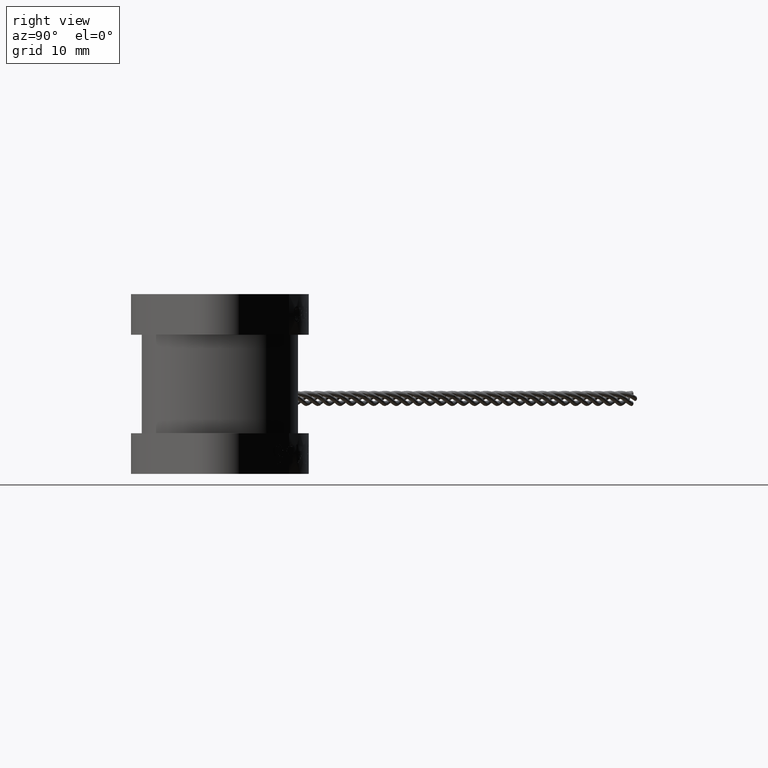
[diagram: clean part render]
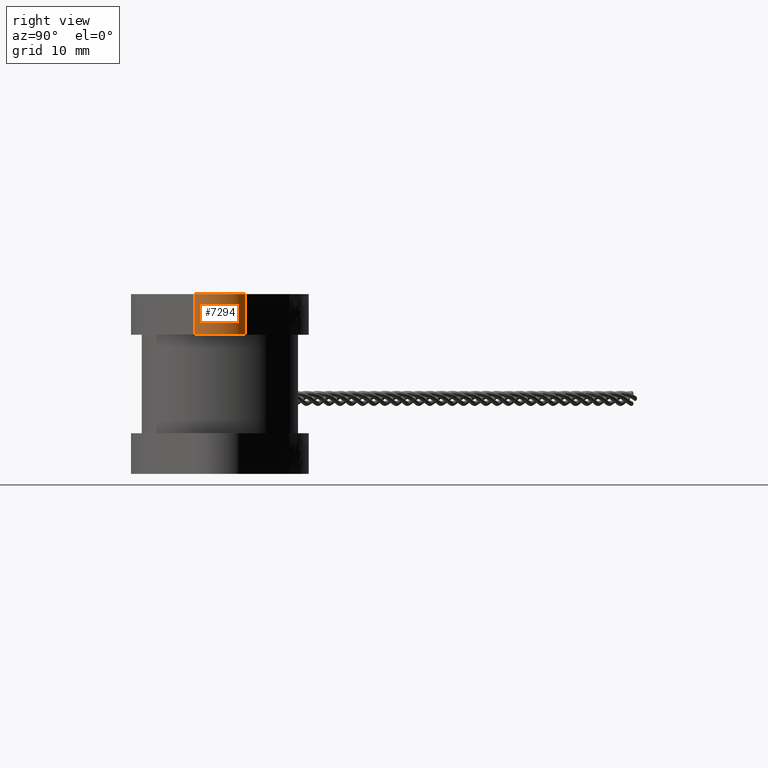
[diagram: same view with one face highlighted and labeled with its STEP entity id]
A machine part, right view. The second image highlights one B-rep face of the part: STEP entity #7294.
In plain terms, the highlighted cylindrical surface (edge-blend (fillet) strip) has radius 3.25 mm, axis along (0, 0, -1).
Its self-contained STEP definition (entity closure, byte-faithful):
#1105=FACE_OUTER_BOUND('',#1519,.T.);
#1519=EDGE_LOOP('',(#6458,#6459,#6460,#6461));
#1681=CIRCLE('',#7684,0.127952755905512);
#1689=CIRCLE('',#7703,0.127952755905512);
#2238=LINE('',#15840,#2778);
#2241=LINE('',#15847,#2781);
#2778=VECTOR('',#8948,39.3700787401575);
#2781=VECTOR('',#8955,39.3700787401575);
#3441=VERTEX_POINT('',#15798);
#3442=VERTEX_POINT('',#15799);
#3454=VERTEX_POINT('',#15838);
#3456=VERTEX_POINT('',#15846);
#4443=EDGE_CURVE('',#3441,#3442,#1681,.T.);
#4463=EDGE_CURVE('',#3454,#3442,#2238,.T.);
#4466=EDGE_CURVE('',#3456,#3441,#2241,.T.);
#4468=EDGE_CURVE('',#3456,#3454,#1689,.T.);
#6458=ORIENTED_EDGE('',*,*,#4443,.T.);
#6459=ORIENTED_EDGE('',*,*,#4463,.F.);
#6460=ORIENTED_EDGE('',*,*,#4468,.F.);
#6461=ORIENTED_EDGE('',*,*,#4466,.T.);
#6563=CYLINDRICAL_SURFACE('',#7702,0.127952755905512);
#7294=ADVANCED_FACE('',(#1105),#6563,.T.);
#7684=AXIS2_PLACEMENT_3D('',#15800,#8904,#8905);
#7702=AXIS2_PLACEMENT_3D('',#15849,#8957,#8958);
#7703=AXIS2_PLACEMENT_3D('',#15850,#8959,#8960);
#8904=DIRECTION('center_axis',(0.,0.,1.));
#8905=DIRECTION('ref_axis',(-1.,0.,0.));
#8948=DIRECTION('',(0.,0.,-1.));
#8955=DIRECTION('',(0.,0.,-1.));
#8957=DIRECTION('center_axis',(0.,0.,-1.));
#8958=DIRECTION('ref_axis',(-1.,0.,0.));
#8959=DIRECTION('center_axis',(0.,0.,1.));
#8960=DIRECTION('ref_axis',(-1.,0.,0.));
#15798=CARTESIAN_POINT('',(0.434656605424322,-0.0995974801541214,0.194330708661417));
#15799=CARTESIAN_POINT('',(0.434656605424322,0.0995974801541218,0.194330708661417));
#15800=CARTESIAN_POINT('Origin',(0.354330708661417,4.90172401428705E-26,
0.194330708661417));
#15838=CARTESIAN_POINT('',(0.434656605424322,0.0995974801541218,0.354330708661417));
#15840=CARTESIAN_POINT('',(0.434656605424322,0.0995974801541218,0.354330708661417));
#15846=CARTESIAN_POINT('',(0.434656605424322,-0.0995974801541214,0.354330708661417));
#15847=CARTESIAN_POINT('',(0.434656605424322,-0.0995974801541214,0.354330708661417));
#15849=CARTESIAN_POINT('Origin',(0.354330708661417,4.90172401428705E-26,
0.354330708661417));
#15850=CARTESIAN_POINT('Origin',(0.354330708661417,4.90172401428705E-26,
0.354330708661417));